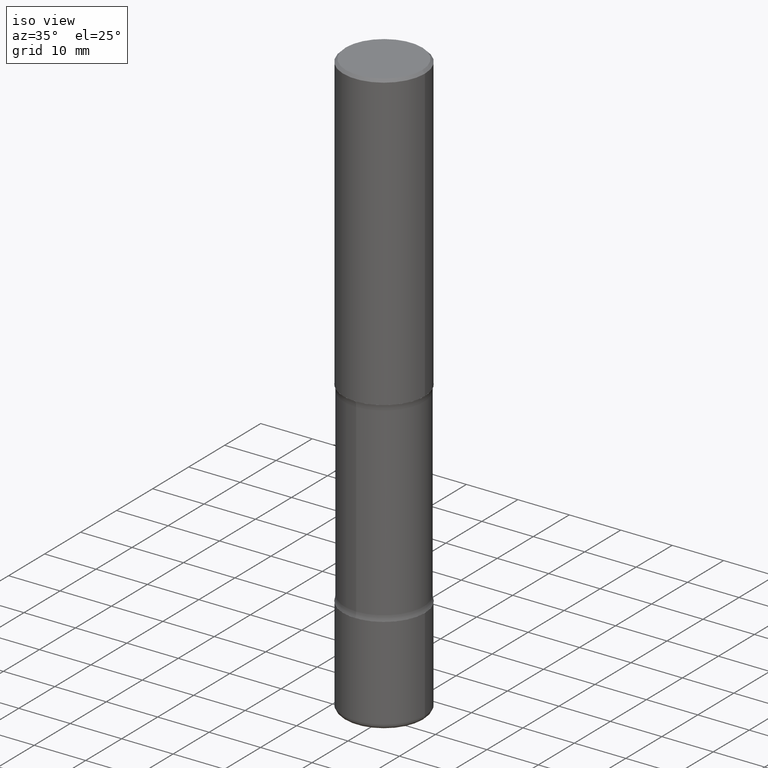
[diagram: clean part render]
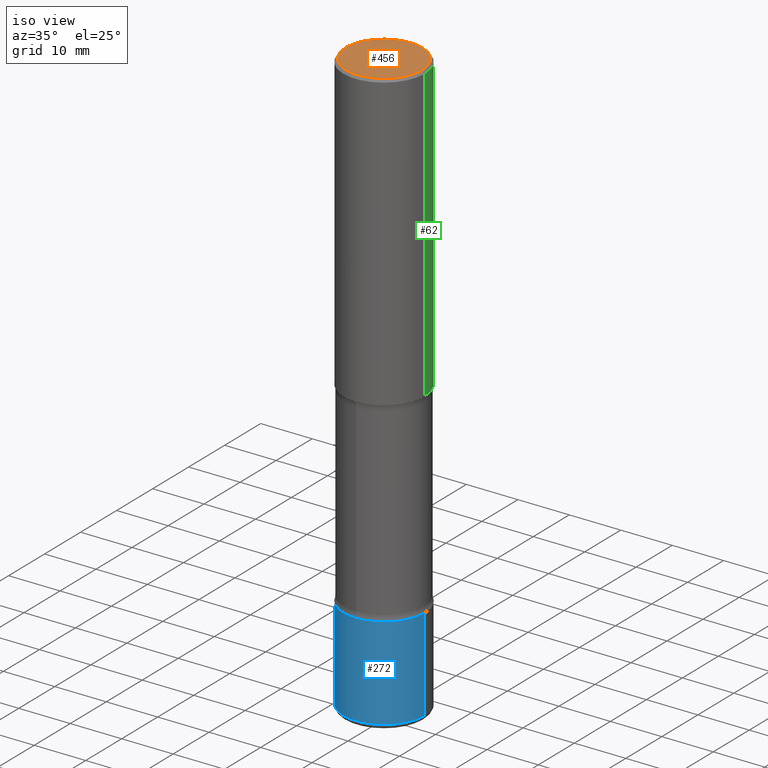
[diagram: same view with three faces highlighted in distinct colors, each labeled with its STEP entity id]
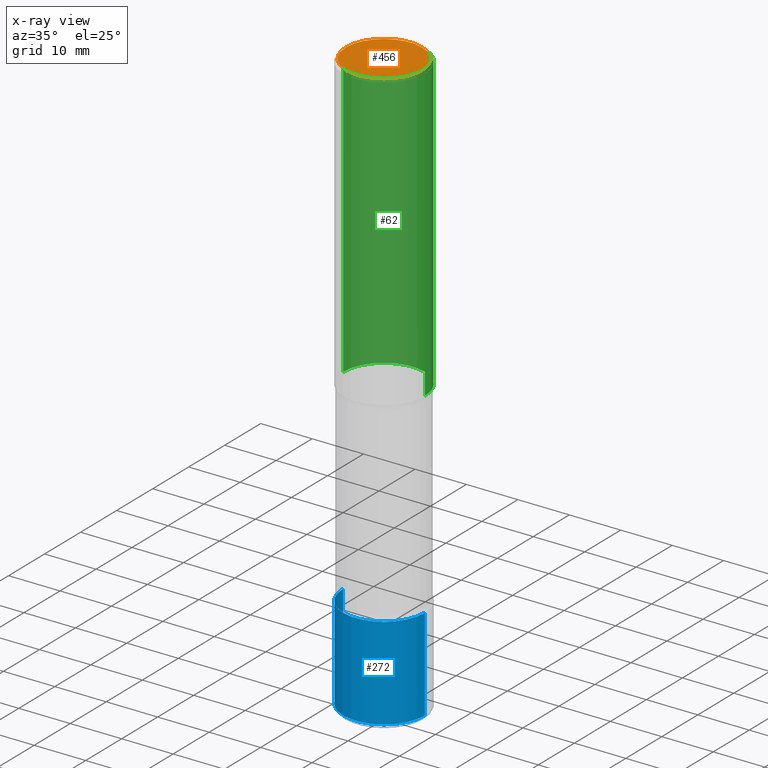
[diagram: x-ray of the same camera — body ghosted, the three highlighted faces saturated]
A machine part, iso view with three faces highlighted in distinct colors.
The next image is the same camera in x-ray (body ghosted, the three faces saturated) — at least one of them is partly hidden behind the body in this view.
Their STEP definitions:

[orange] entity #456 — the highlighted planar face has unit normal (0, -0, -1).
#12 = PLANE ( 'NONE',  #105 ) ;
#25 = CARTESIAN_POINT ( 'NONE',  ( 0.2924999999999999267, -2.110215457714319931E-15, 4.268512490114932791E-18 ) ) ;
#73 = DIRECTION ( 'NONE',  ( -2.445468806185136597E-29, 3.491481338843145583E-15, 1.000000000000000000 ) ) ;
#104 = DIRECTION ( 'NONE',  ( -2.445468806185136597E-29, 3.491481338843145583E-15, 1.000000000000000000 ) ) ;
#105 = AXIS2_PLACEMENT_3D ( 'NONE', #192, #151, #175 ) ;
#107 = DIRECTION ( 'NONE',  ( 1.000000000000000000, -6.982962677686266711E-15, 4.876067333457690598E-29 ) ) ;
#113 = VERTEX_POINT ( 'NONE', #25 ) ;
#115 = CIRCLE ( 'NONE', #479, 0.2924999999999999267 ) ;
#151 = DIRECTION ( 'NONE',  ( 2.438088387897960049E-29, -3.491481338843145188E-15, -1.000000000000000000 ) ) ;
#175 = DIRECTION ( 'NONE',  ( -1.000000000000000000, 6.982962677686265922E-15, -4.876176775795935793E-29 ) ) ;
#192 = CARTESIAN_POINT ( 'NONE',  ( 2.042516583223232540E-15, 0.2924999999999999267, -1.019124035366569606E-15 ) ) ;
#197 = ORIENTED_EDGE ( 'NONE', *, *, #324, .T. ) ;
#220 = EDGE_CURVE ( 'NONE', #268, #113, #115, .T. ) ;
#236 = AXIS2_PLACEMENT_3D ( 'NONE', #406, #104, #107 ) ;
#268 = VERTEX_POINT ( 'NONE', #395 ) ;
#290 = CARTESIAN_POINT ( 'NONE',  ( -1.043851414335219820E-46, 1.490343170380447200E-32, 4.268512490100411279E-18 ) ) ;
#324 = EDGE_CURVE ( 'NONE', #113, #268, #363, .T. ) ;
#363 = CIRCLE ( 'NONE', #236, 0.2924999999999999267 ) ;
#395 = CARTESIAN_POINT ( 'NONE',  ( -0.2924999999999999267, 2.077431396611664189E-15, 4.268512490086005323E-18 ) ) ;
#406 = CARTESIAN_POINT ( 'NONE',  ( -1.043851414335219820E-46, 1.490343170380447200E-32, 4.268512490100411279E-18 ) ) ;
#451 = EDGE_LOOP ( 'NONE', ( #462, #197 ) ) ;
#456 = ADVANCED_FACE ( 'NONE', ( #490 ), #12, .F. ) ;
#462 = ORIENTED_EDGE ( 'NONE', *, *, #220, .T. ) ;
#479 = AXIS2_PLACEMENT_3D ( 'NONE', #290, #73, #558 ) ;
#490 = FACE_OUTER_BOUND ( 'NONE', #451, .T. ) ;
#558 = DIRECTION ( 'NONE',  ( 1.000000000000000000, -6.982962677686266711E-15, 4.876067333457690598E-29 ) ) ;

[blue] entity #272 — the highlighted cylindrical surface (partial cylindrical patch) has radius 7.9375 mm, axis along (-0, 0, 1).
#58 = FACE_OUTER_BOUND ( 'NONE', #405, .T. ) ;
#79 = CIRCLE ( 'NONE', #253, 0.3125000000000001665 ) ;
#90 = DIRECTION ( 'NONE',  ( 1.000000000000000000, -6.982962677686265133E-15, 0.000000000000000000 ) ) ;
#97 = VERTEX_POINT ( 'NONE', #170 ) ;
#99 = CARTESIAN_POINT ( 'NONE',  ( 0.000000000000000000, 0.000000000000000000, 0.000000000000000000 ) ) ;
#106 = CARTESIAN_POINT ( 'NONE',  ( -0.3125000000000001665, -1.211208484670079920E-14, -3.750000000000000000 ) ) ;
#133 = DIRECTION ( 'NONE',  ( -2.445468806185136877E-29, 3.491481338843145188E-15, 1.000000000000000000 ) ) ;
#155 = ORIENTED_EDGE ( 'NONE', *, *, #497, .F. ) ;
#156 = VECTOR ( 'NONE', #133, 39.37007874015748143 ) ;
#170 = CARTESIAN_POINT ( 'NONE',  ( -0.3125000000000001665, -1.335156072199011406E-14, -4.459999999999999964 ) ) ;
#179 = LINE ( 'NONE', #343, #156 ) ;
#184 = EDGE_CURVE ( 'NONE', #97, #188, #179, .T. ) ;
#188 = VERTEX_POINT ( 'NONE', #106 ) ;
#191 = DIRECTION ( 'NONE',  ( 1.000000000000000000, -6.982962677686266711E-15, 4.876176775795935232E-29 ) ) ;
#211 = DIRECTION ( 'NONE',  ( -2.445468806185136597E-29, 3.491481338843145583E-15, 1.000000000000000000 ) ) ;
#218 = LINE ( 'NONE', #392, #374 ) ;
#222 = CARTESIAN_POINT ( 'NONE',  ( 0.3125000000000001665, -1.775418260801738707E-14, -4.459999999999999964 ) ) ;
#231 = DIRECTION ( 'NONE',  ( 1.000000000000000000, -6.982962677686265133E-15, 0.000000000000000000 ) ) ;
#232 = EDGE_CURVE ( 'NONE', #266, #418, #218, .T. ) ;
#246 = AXIS2_PLACEMENT_3D ( 'NONE', #429, #211, #90 ) ;
#253 = AXIS2_PLACEMENT_3D ( 'NONE', #311, #364, #231 ) ;
#262 = DIRECTION ( 'NONE',  ( -2.445468806185136597E-29, 3.491481338843145583E-15, 1.000000000000000000 ) ) ;
#266 = VERTEX_POINT ( 'NONE', #222 ) ;
#272 = ADVANCED_FACE ( 'NONE', ( #58 ), #359, .T. ) ;
#311 = CARTESIAN_POINT ( 'NONE',  ( 9.170508023194262238E-29, -1.309305502066179741E-14, -3.750000000000000000 ) ) ;
#317 = ORIENTED_EDGE ( 'NONE', *, *, #184, .F. ) ;
#320 = CIRCLE ( 'NONE', #246, 0.3125000000000001665 ) ;
#343 = CARTESIAN_POINT ( 'NONE',  ( -0.3125000000000001665, 2.220446049250314264E-15, -1.537167215704658792E-29 ) ) ;
#349 = DIRECTION ( 'NONE',  ( -2.445468806185136877E-29, 3.491481338843145188E-15, 1.000000000000000000 ) ) ;
#359 = CYLINDRICAL_SURFACE ( 'NONE', #386, 0.3125000000000001665 ) ;
#364 = DIRECTION ( 'NONE',  ( -2.445468806185136597E-29, 3.491481338843145583E-15, 1.000000000000000000 ) ) ;
#374 = VECTOR ( 'NONE', #349, 39.37007874015748143 ) ;
#386 = AXIS2_PLACEMENT_3D ( 'NONE', #99, #262, #191 ) ;
#392 = CARTESIAN_POINT ( 'NONE',  ( 0.3125000000000001665, -2.182175836776959530E-15, 1.523805242436230636E-29 ) ) ;
#405 = EDGE_LOOP ( 'NONE', ( #317, #407, #443, #155 ) ) ;
#407 = ORIENTED_EDGE ( 'NONE', *, *, #525, .T. ) ;
#418 = VERTEX_POINT ( 'NONE', #433 ) ;
#429 = CARTESIAN_POINT ( 'NONE',  ( 1.090679087558570850E-28, -1.557200677124043030E-14, -4.459999999999999964 ) ) ;
#433 = CARTESIAN_POINT ( 'NONE',  ( 0.3125000000000001665, -1.527523085743875734E-14, -3.750000000000000000 ) ) ;
#443 = ORIENTED_EDGE ( 'NONE', *, *, #232, .T. ) ;
#497 = EDGE_CURVE ( 'NONE', #188, #418, #79, .T. ) ;
#525 = EDGE_CURVE ( 'NONE', #97, #266, #320, .T. ) ;

[green] entity #62 — the highlighted cylindrical surface (partial cylindrical patch) has radius 7.9375 mm, axis along (-0, 0, 1).
#8 = CARTESIAN_POINT ( 'NONE',  ( -0.3125000000000003331, -1.742385270336653059E-15, -2.250000000000000000 ) ) ;
#16 = DIRECTION ( 'NONE',  ( -2.445468806185136597E-29, 3.491481338843145583E-15, 1.000000000000000000 ) ) ;
#39 = ORIENTED_EDGE ( 'NONE', *, *, #74, .F. ) ;
#41 = AXIS2_PLACEMENT_3D ( 'NONE', #313, #491, #409 ) ;
#47 = ORIENTED_EDGE ( 'NONE', *, *, #493, .F. ) ;
#60 = DIRECTION ( 'NONE',  ( 1.000000000000000000, -6.982962677686266711E-15, 0.000000000000000000 ) ) ;
#62 = ADVANCED_FACE ( 'NONE', ( #288 ), #120, .T. ) ;
#74 = EDGE_CURVE ( 'NONE', #494, #144, #194, .T. ) ;
#76 = CARTESIAN_POINT ( 'NONE',  ( 4.890937612370289799E-31, -6.982962677686315028E-17, -0.02000000000000006981 ) ) ;
#120 = CYLINDRICAL_SURFACE ( 'NONE', #373, 0.3125000000000001665 ) ;
#141 = LINE ( 'NONE', #445, #422 ) ;
#142 = CARTESIAN_POINT ( 'NONE',  ( 0.3125000000000000000, -2.213735251080466911E-15, -0.02000000000000006981 ) ) ;
#144 = VERTEX_POINT ( 'NONE', #291 ) ;
#153 = CARTESIAN_POINT ( 'NONE',  ( 0.000000000000000000, 0.000000000000000000, 0.000000000000000000 ) ) ;
#168 = ORIENTED_EDGE ( 'NONE', *, *, #559, .T. ) ;
#182 = CARTESIAN_POINT ( 'NONE',  ( -0.3125000000000001665, 2.220446049250314264E-15, -1.537167215704658792E-29 ) ) ;
#189 = EDGE_CURVE ( 'NONE', #501, #144, #337, .T. ) ;
#194 = CIRCLE ( 'NONE', #413, 0.3125000000000000000 ) ;
#233 = ORIENTED_EDGE ( 'NONE', *, *, #189, .T. ) ;
#271 = DIRECTION ( 'NONE',  ( 1.000000000000000000, -6.982962677686266711E-15, 4.876176775795935232E-29 ) ) ;
#288 = FACE_OUTER_BOUND ( 'NONE', #505, .T. ) ;
#291 = CARTESIAN_POINT ( 'NONE',  ( -0.3125000000000000000, 2.112346210000095443E-15, -0.02000000000000006981 ) ) ;
#313 = CARTESIAN_POINT ( 'NONE',  ( 5.502304813916557343E-29, -7.855833012397078448E-15, -2.250000000000000000 ) ) ;
#321 = VERTEX_POINT ( 'NONE', #457 ) ;
#337 = LINE ( 'NONE', #182, #541 ) ;
#373 = AXIS2_PLACEMENT_3D ( 'NONE', #153, #16, #271 ) ;
#409 = DIRECTION ( 'NONE',  ( 1.000000000000000000, -6.982962677686264344E-15, 0.000000000000000000 ) ) ;
#413 = AXIS2_PLACEMENT_3D ( 'NONE', #76, #551, #60 ) ;
#422 = VECTOR ( 'NONE', #529, 39.37007874015748143 ) ;
#445 = CARTESIAN_POINT ( 'NONE',  ( 0.3125000000000001665, -2.182175836776959530E-15, 1.523805242436230636E-29 ) ) ;
#457 = CARTESIAN_POINT ( 'NONE',  ( 0.3125000000000003331, -1.003800884917403837E-14, -2.250000000000000000 ) ) ;
#481 = CIRCLE ( 'NONE', #41, 0.3125000000000003331 ) ;
#491 = DIRECTION ( 'NONE',  ( -2.445468806185136597E-29, 3.491481338843145583E-15, 1.000000000000000000 ) ) ;
#493 = EDGE_CURVE ( 'NONE', #321, #494, #141, .T. ) ;
#494 = VERTEX_POINT ( 'NONE', #142 ) ;
#501 = VERTEX_POINT ( 'NONE', #8 ) ;
#505 = EDGE_LOOP ( 'NONE', ( #168, #233, #39, #47 ) ) ;
#529 = DIRECTION ( 'NONE',  ( -2.445468806185136877E-29, 3.491481338843145188E-15, 1.000000000000000000 ) ) ;
#541 = VECTOR ( 'NONE', #557, 39.37007874015748143 ) ;
#551 = DIRECTION ( 'NONE',  ( -2.445468806185136597E-29, 3.491481338843145583E-15, 1.000000000000000000 ) ) ;
#557 = DIRECTION ( 'NONE',  ( -2.445468806185136877E-29, 3.491481338843145188E-15, 1.000000000000000000 ) ) ;
#559 = EDGE_CURVE ( 'NONE', #321, #501, #481, .T. ) ;